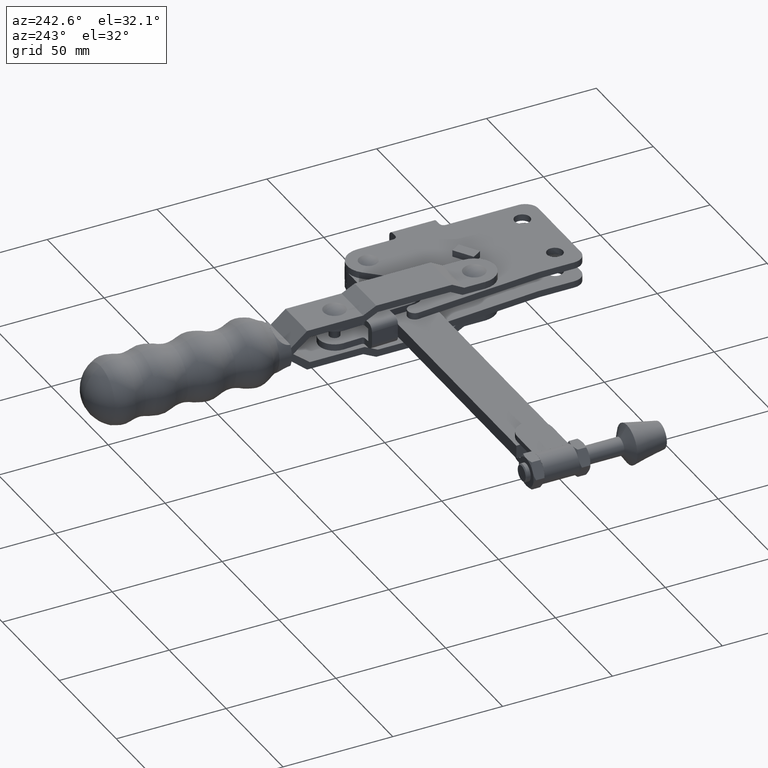
[diagram: clean part render]
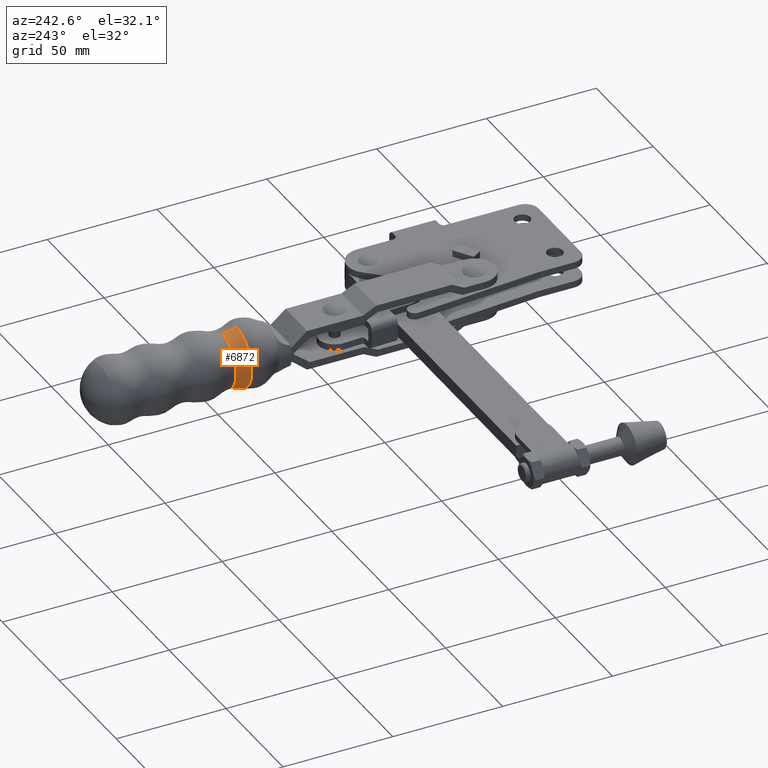
[diagram: same view with one face highlighted and labeled with its STEP entity id]
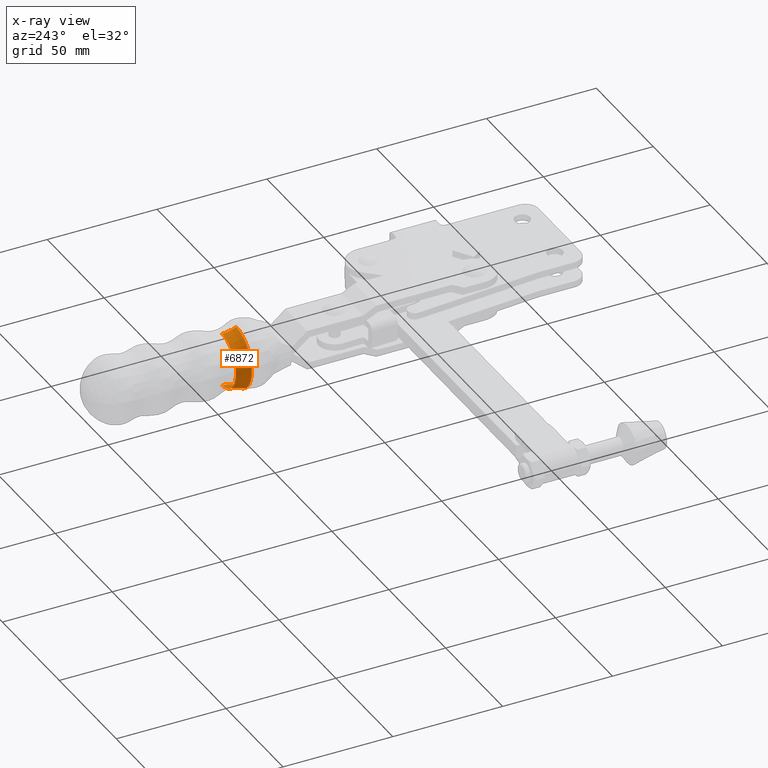
[diagram: x-ray of the same camera — body ghosted, the highlighted face saturated]
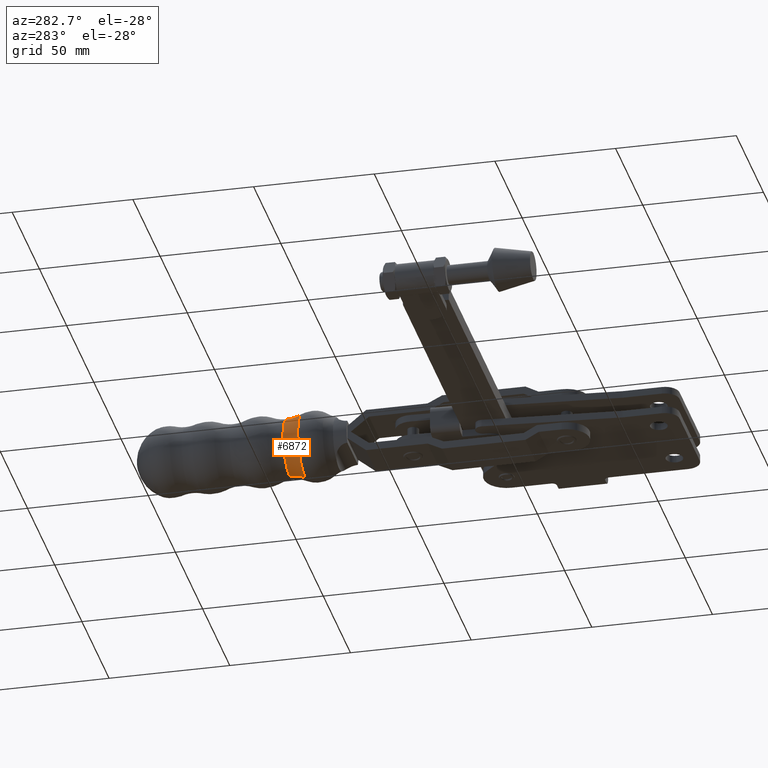
[diagram: same view with one face highlighted and labeled with its STEP entity id]
A machine part, auxiliary view. The second image highlights one B-rep face of the part: STEP entity #6872.
The next image is the same camera in x-ray: the body ghosted, the highlighted face saturated — about 0% of this face is hidden behind the body in this view.
A second angle (auxiliary view) of the same face is appended — the face is thin or edge-on in the first view.
In plain terms, the highlighted toroidal blend (fillet) surface has major radius 27.2584 mm and minor (blend) radius 15 mm.
Its self-contained STEP definition (entity closure, byte-faithful):
#990 = VERTEX_POINT ( 'NONE', #2710 ) ;
#1357 = CIRCLE ( 'NONE', #2438, 14.99999999999976000 ) ;
#1429 = FACE_OUTER_BOUND ( 'NONE', #5957, .T. ) ;
#1490 = DIRECTION ( 'NONE',  ( 1.882973044817432300E-023, 3.551894701186224300E-019, -1.000000000000000000 ) ) ;
#1525 = DIRECTION ( 'NONE',  ( -5.301320001245035700E-005, -0.9999999985948002700, -3.551894706177346300E-019 ) ) ;
#1803 = CARTESIAN_POINT ( 'NONE',  ( -40.89177301632065600, 143.4267134820567500, 3.194246408741996400E-013 ) ) ;
#2113 = DIRECTION ( 'NONE',  ( 0.0000000000000000000, 0.0000000000000000000, -1.000000000000000000 ) ) ;
#2115 = DIRECTION ( 'NONE',  ( -5.301320001245037100E-005, -0.9999999985948004900, -3.551894706177347300E-019 ) ) ;
#2126 = CARTESIAN_POINT ( 'NONE',  ( -40.89211353523233300, 137.0034281282075000, 3.194223593908719500E-013 ) ) ;
#2438 = AXIS2_PLACEMENT_3D ( 'NONE', #7718, #8353, #7682 ) ;
#2596 = EDGE_CURVE ( 'NONE', #4835, #990, #3803, .T. ) ;
#2710 = CARTESIAN_POINT ( 'NONE',  ( -40.89177301632064900, 143.4267134820567500, 12.25836101760748100 ) ) ;
#3409 = VERTEX_POINT ( 'NONE', #4608 ) ;
#3803 = CIRCLE ( 'NONE', #7307, 14.99999999999976000 ) ;
#4216 = AXIS2_PLACEMENT_3D ( 'NONE', #8608, #8569, #8548 ) ;
#4500 = ORIENTED_EDGE ( 'NONE', *, *, #6162, .T. ) ;
#4608 = CARTESIAN_POINT ( 'NONE',  ( -40.89177301632065600, 143.4267134820567500, -12.25836101760684100 ) ) ;
#4835 = VERTEX_POINT ( 'NONE', #9569 ) ;
#5879 = VERTEX_POINT ( 'NONE', #6831 ) ;
#5957 = EDGE_LOOP ( 'NONE', ( #6419, #4500, #7586, #6393 ) ) ;
#6162 = EDGE_CURVE ( 'NONE', #990, #3409, #6219, .T. ) ;
#6219 = CIRCLE ( 'NONE', #4216, 12.25836101760716400 ) ;
#6393 = ORIENTED_EDGE ( 'NONE', *, *, #8977, .F. ) ;
#6419 = ORIENTED_EDGE ( 'NONE', *, *, #2596, .T. ) ;
#6831 = CARTESIAN_POINT ( 'NONE',  ( -40.89211353523232600, 137.0034281282075300, -13.70323633551445900 ) ) ;
#6872 = ADVANCED_FACE ( 'NONE', ( #1429 ), #8557, .F. ) ;
#7116 = AXIS2_PLACEMENT_3D ( 'NONE', #1803, #1525, #1490 ) ;
#7307 = AXIS2_PLACEMENT_3D ( 'NONE', #7373, #9904, #9354 ) ;
#7373 = CARTESIAN_POINT ( 'NONE',  ( -40.89177301632064900, 143.4267134820567500, 27.25836101760722800 ) ) ;
#7586 = ORIENTED_EDGE ( 'NONE', *, *, #9420, .F. ) ;
#7588 = CIRCLE ( 'NONE', #8774, 13.70323633551478300 ) ;
#7682 = DIRECTION ( 'NONE',  ( -5.301320001223900500E-005, -0.9999999985948002700, 0.0000000000000000000 ) ) ;
#7718 = CARTESIAN_POINT ( 'NONE',  ( -40.89177301632065600, 143.4267134820567500, -27.25836101760659200 ) ) ;
#8353 = DIRECTION ( 'NONE',  ( -0.9999999985948003800, 5.301320001245036400E-005, 6.835446069150691700E-017 ) ) ;
#8548 = DIRECTION ( 'NONE',  ( 0.9999999985948002700, -5.301320001153655700E-005, 0.0000000000000000000 ) ) ;
#8557 = TOROIDAL_SURFACE ( 'NONE', #7116, 27.25836101760691600, 14.99999999999975100 ) ;
#8569 = DIRECTION ( 'NONE',  ( -5.301320001245037100E-005, -0.9999999985948004900, -3.551894706177347300E-019 ) ) ;
#8608 = CARTESIAN_POINT ( 'NONE',  ( -40.89177301632065600, 143.4267134820567500, 3.194246408741996400E-013 ) ) ;
#8774 = AXIS2_PLACEMENT_3D ( 'NONE', #2126, #2115, #2113 ) ;
#8977 = EDGE_CURVE ( 'NONE', #4835, #5879, #7588, .T. ) ;
#9354 = DIRECTION ( 'NONE',  ( 5.301320001223900500E-005, 0.9999999985948002700, 0.0000000000000000000 ) ) ;
#9420 = EDGE_CURVE ( 'NONE', #5879, #3409, #1357, .T. ) ;
#9569 = CARTESIAN_POINT ( 'NONE',  ( -40.89211353523232600, 137.0034281282075300, 13.70323633551509700 ) ) ;
#9904 = DIRECTION ( 'NONE',  ( 0.9999999985948003800, -5.301320001245036400E-005, -1.908191406062422600E-016 ) ) ;